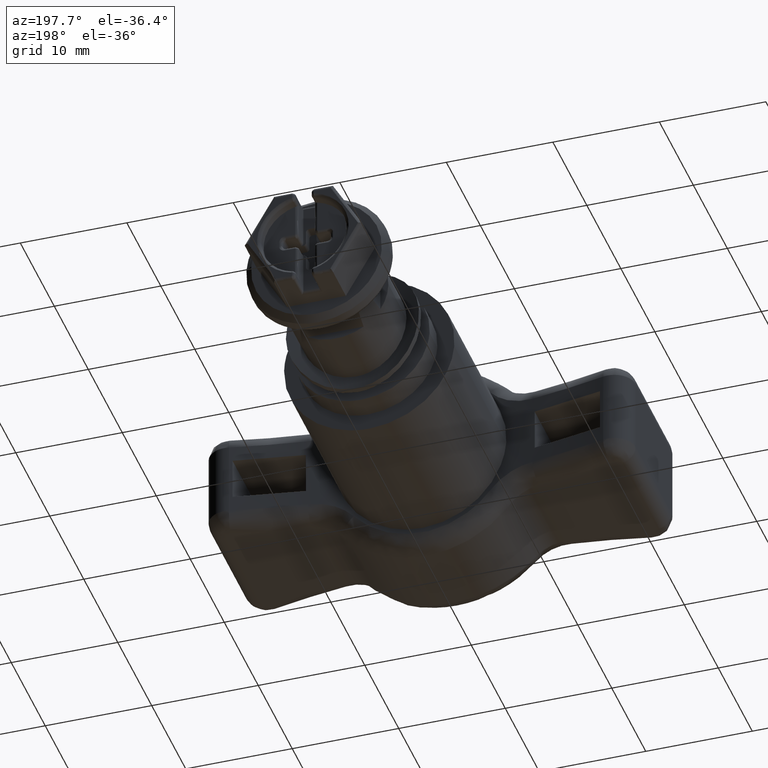
[diagram: clean part render]
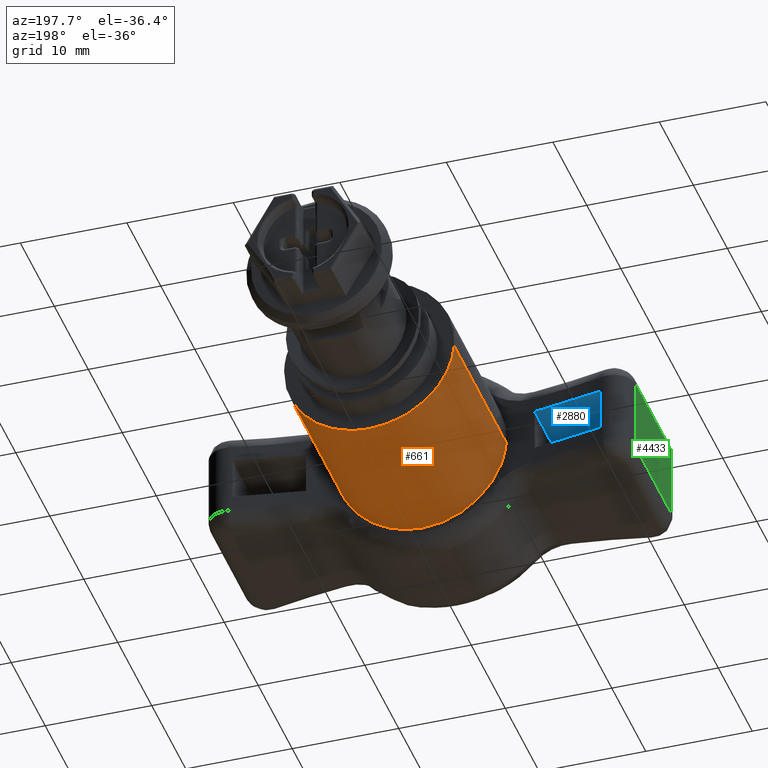
[diagram: same view with three faces highlighted in distinct colors, each labeled with its STEP entity id]
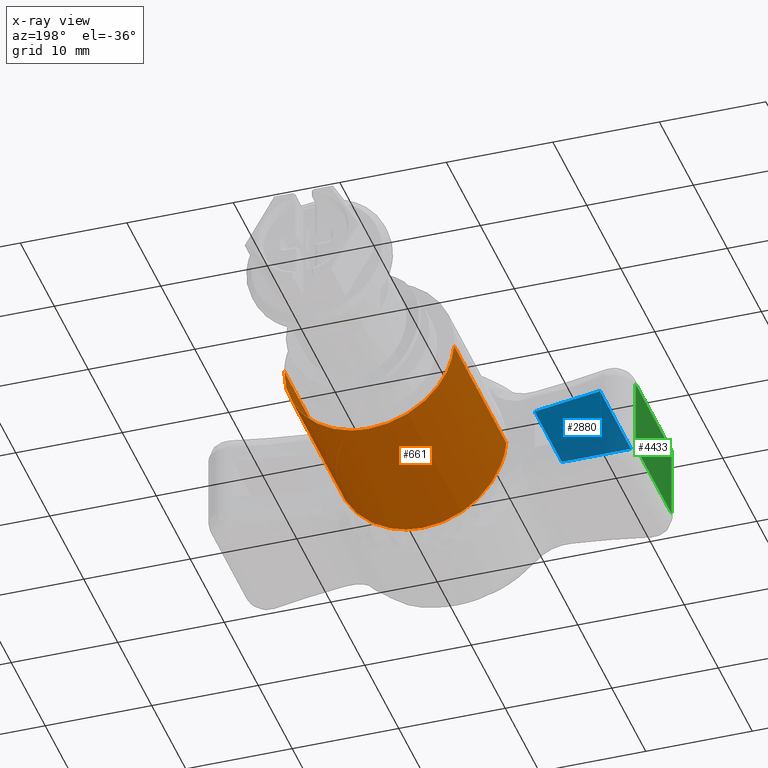
[diagram: x-ray of the same camera — body ghosted, the three highlighted faces saturated]
A machine part, auxiliary view with three faces highlighted in distinct colors.
The next image is the same camera in x-ray (body ghosted, the three faces saturated) — at least one of them is partly hidden behind the body in this view.
Their STEP definitions:

[orange] entity #661 — the highlighted face is a freeform B-spline surface patch.
#512=CARTESIAN_POINT('',(7.998182910859343,-16.093183124772978,0.170517459842974));
#513=CARTESIAN_POINT('',(8.159211660625195,-16.093183124772978,-7.382594084982651));
#514=CARTESIAN_POINT('',(0.627672795635606,-16.093183124772981,-7.975339048673273));
#515=CARTESIAN_POINT('',(-7.347666253037667,-16.093183124772981,-8.603011844308877));
#516=CARTESIAN_POINT('',(-7.975339048673273,-16.093183124772981,-0.627672795635606));
#517=CARTESIAN_POINT('',(7.998182910859343,0.402329578119323,0.170517459842974));
#518=CARTESIAN_POINT('',(8.159211660625195,0.402329578119323,-7.382594084982651));
#519=CARTESIAN_POINT('',(0.627672795635606,0.402329578119323,-7.975339048673273));
#520=CARTESIAN_POINT('',(-7.347666253037667,0.402329578119323,-8.603011844308877));
#521=CARTESIAN_POINT('',(-7.975339048673273,0.402329578119323,-0.627672795635606));
#529=(BOUNDED_SURFACE()B_SPLINE_SURFACE(2,1,((#512,#517),(#513,#518),(#514,#519),(#515,#520),(#516,#521)),.UNSPECIFIED.,.F.,.F.,.U.)B_SPLINE_SURFACE_WITH_KNOTS((3,2,3),(2,2),(0.0,12.724641240489460,25.979475865999309),(0.0,16.495512702892309),.UNSPECIFIED.)GEOMETRIC_REPRESENTATION_ITEM()RATIONAL_B_SPLINE_SURFACE(((0.977505800795127,0.977505800795127),(0.718822509939086,0.718822509939086),(1.0,1.0),(0.707106781186548,0.707106781186548),(1.0,1.0)))REPRESENTATION_ITEM('')SURFACE());
#530=CARTESIAN_POINT('',(7.998182910858612,-2.839428E-017,0.170517459877283));
#531=VERTEX_POINT('',#530);
#532=CARTESIAN_POINT('',(0.0,0.0,-8.000000379979600));
#533=VERTEX_POINT('',#532);
#534=CARTESIAN_POINT('',(7.998182910858612,-2.839428E-017,0.170517459877283));
#535=CARTESIAN_POINT('',(8.000000379979600,0.0,0.085268415749879));
#536=CARTESIAN_POINT('',(8.000000379979600,0.0,0.0));
#537=CARTESIAN_POINT('',(8.000000379979600,0.0,-8.000000379979600));
#538=CARTESIAN_POINT('',(0.0,0.0,-8.000000379979600));
#546=(BOUNDED_CURVE()B_SPLINE_CURVE(2,(#534,#535,#536,#537,#538),.UNSPECIFIED.,.F.,.U.)B_SPLINE_CURVE_WITH_KNOTS((3,2,3),(0.246248196889351,0.250000000000000,0.500000000000000),.UNSPECIFIED.)CURVE()GEOMETRIC_REPRESENTATION_ITEM()RATIONAL_B_SPLINE_CURVE((0.991340907212012,0.995604489242271,1.0,0.707106781186547,1.0))REPRESENTATION_ITEM(''));
#547=EDGE_CURVE('',#531,#533,#546,.T.);
#548=ORIENTED_EDGE('',*,*,#547,.F.);
#549=CARTESIAN_POINT('',(7.998189575504586,-15.299846145491509,0.170518252989713));
#550=VERTEX_POINT('',#549);
#551=CARTESIAN_POINT('',(7.998189575504586,-15.299846145491509,0.170518252989713));
#552=CARTESIAN_POINT('',(7.998182910858612,-2.839428E-017,0.170517459877283));
#553=QUASI_UNIFORM_CURVE('',1,(#551,#552),.UNSPECIFIED.,.F.,.U.);
#554=EDGE_CURVE('',#550,#531,#553,.T.);
#555=ORIENTED_EDGE('',*,*,#554,.F.);
#556=CARTESIAN_POINT('',(0.002939851220572,-15.700666409176170,-7.999999839809282));
#557=VERTEX_POINT('',#556);
#558=CARTESIAN_POINT('',(7.998189575504586,-15.299846145491509,0.170518252989713));
#559=CARTESIAN_POINT('',(7.999361779124968,-15.299727554607450,0.115168271400395));
#560=CARTESIAN_POINT('',(7.999962258468556,-15.299666631379781,0.059786582769005));
#561=CARTESIAN_POINT('',(8.000135389398656,-15.299649203480451,-0.256669031666603));
#562=CARTESIAN_POINT('',(7.987534302955652,-15.300918856037320,-0.518418086671199));
#563=CARTESIAN_POINT('',(7.948918610039151,-15.304781121968791,-0.912134817287734));
#564=CARTESIAN_POINT('',(7.932733655267993,-15.306396917732689,-1.043524846366049));
#565=CARTESIAN_POINT('',(7.894143888223549,-15.310232929859570,-1.303726245262153));
#566=CARTESIAN_POINT('',(7.871708108676165,-15.312456244713889,-1.432910369848698));
#567=CARTESIAN_POINT('',(7.744083212379546,-15.325033929791671,-2.074324657327033));
#568=CARTESIAN_POINT('',(7.592998519944930,-15.339771549675010,-2.573163739845848));
#569=CARTESIAN_POINT('',(7.342519093014885,-15.363017174533621,-3.178761723418712));
#570=CARTESIAN_POINT('',(7.289314257765386,-15.367907387093300,-3.298975749109803));
#571=CARTESIAN_POINT('',(7.176561544696968,-15.378143450977230,-3.537557203993290));
#572=CARTESIAN_POINT('',(7.117211095582082,-15.383470973422810,-3.655472801427078));
#573=CARTESIAN_POINT('',(6.931546452504620,-15.399909035225299,-4.002817816931408));
#574=CARTESIAN_POINT('',(6.797185204552394,-15.411515891286010,-4.226830356252360));
#575=CARTESIAN_POINT('',(6.363070375742504,-15.447740527954259,-4.876759991855820));
#576=CARTESIAN_POINT('',(6.032593298414259,-15.473769693843440,-5.280787030242660));
#577=CARTESIAN_POINT('',(5.286017741163784,-15.526715961379880,-6.028011434876336));
#578=CARTESIAN_POINT('',(4.882234633434437,-15.552729245029820,-6.358865586094344));
#579=CARTESIAN_POINT('',(4.232791438560047,-15.588904511928121,-6.793475985099809));
#580=CARTESIAN_POINT('',(4.008949809211765,-15.600491650913440,-6.928001922604571));
#581=CARTESIAN_POINT('',(3.661879752631648,-15.616898419187850,-7.113919769331390));
#582=CARTESIAN_POINT('',(3.544112581902928,-15.622212976667500,-7.173331248112847));
#583=CARTESIAN_POINT('',(3.305546993013137,-15.632435396187899,-7.286341745998351));
#584=CARTESIAN_POINT('',(3.185347477517295,-15.637318358402700,-7.339669217526497));
#585=CARTESIAN_POINT('',(2.579856628035139,-15.660527491288500,-7.590739066848222));
#586=CARTESIAN_POINT('',(2.081212907702857,-15.675235296331520,-7.742223783931449));
#587=CARTESIAN_POINT('',(1.440214819873516,-15.687804508937811,-7.870379777571555));
#588=CARTESIAN_POINT('',(1.311122608020739,-15.690027557710410,-7.892923332971799));
#589=CARTESIAN_POINT('',(1.116123366640953,-15.692906821986970,-7.922032119953430));
#590=CARTESIAN_POINT('',(1.050896692673512,-15.693790686528560,-7.930950254319211));
#591=CARTESIAN_POINT('',(0.919984490870974,-15.695403369064790,-7.947199792474359));
#592=CARTESIAN_POINT('',(0.854219091768488,-15.696132827903750,-7.954537623553475));
#593=CARTESIAN_POINT('',(0.525921290505257,-15.699368971603439,-7.987056304244334));
#594=CARTESIAN_POINT('',(0.264056165247729,-15.700656846643721,-7.999903886707103));
#595=CARTESIAN_POINT('',(0.002939851220572,-15.700666409176170,-7.999999839809282));
#596=B_SPLINE_CURVE_WITH_KNOTS('',3,(#558,#559,#560,#561,#562,#563,#564,#565,#566,#567,#568,#569,#570,#571,#572,#573,#574,#575,#576,#577,#578,#579,#580,#581,#582,#583,#584,#585,#586,#587,#588,#589,#590,#591,#592,#593,#594,#595),.UNSPECIFIED.,.F.,.U.,(4,2,2,2,2,2,2,2,2,2,2,2,2,2,2,2,2,2,4),(0.246683169838817,0.249999999999999,0.265624999999999,0.273437499999999,0.281249999999999,0.312499999999998,0.320312499999998,0.328124999999998,0.343749999999998,0.374999999999998,0.406249999999997,0.421874999999997,0.429687499999997,0.437499999999997,0.468749999999997,0.476562499999997,0.480468749999997,0.484374999999997,0.499999999999997),.UNSPECIFIED.);
#597=EDGE_CURVE('',#550,#557,#596,.T.);
#598=ORIENTED_EDGE('',*,*,#597,.T.);
#599=CARTESIAN_POINT('',(-7.975382287936505,-15.302137752788649,-0.627678039510764));
#600=VERTEX_POINT('',#599);
#601=CARTESIAN_POINT('',(0.002939851220572,-15.700666409176170,-7.999999839809282));
#602=CARTESIAN_POINT('',(-0.519291460865919,-15.700685675299450,-8.000191629880026));
#603=CARTESIAN_POINT('',(-1.038548440059233,-15.695591403295371,-7.949739154898611));
#604=CARTESIAN_POINT('',(-1.683817346708716,-15.683048553756350,-7.821895486386706));
#605=CARTESIAN_POINT('',(-1.813032951914057,-15.680221916224131,-7.792961923139670));
#606=CARTESIAN_POINT('',(-2.068721868534363,-15.674016832178600,-7.729018434223471));
#607=CARTESIAN_POINT('',(-2.195293369330933,-15.670638524865030,-7.694010739533669));
#608=CARTESIAN_POINT('',(-2.571261775830338,-15.659727946402890,-7.580050105458912));
#609=CARTESIAN_POINT('',(-3.062581071362703,-15.643112462943879,-7.404311597983808));
#610=CARTESIAN_POINT('',(-3.534283281223657,-15.622892904875741,-7.181728337673983));
#611=CARTESIAN_POINT('',(-3.880612930473646,-15.606574892924179,-6.996988184861610));
#612=CARTESIAN_POINT('',(-3.994812788805191,-15.600943418535721,-6.932435741651685));
#613=CARTESIAN_POINT('',(-4.220682931463810,-15.589330334868720,-6.797279900057411));
#614=CARTESIAN_POINT('',(-4.332532230606963,-15.583337635570590,-6.726537782526421));
#615=CARTESIAN_POINT('',(-4.879443903887531,-15.552923901541449,-6.361413906404891));
#616=CARTESIAN_POINT('',(-5.282286009533676,-15.526942363516071,-6.030686668035433));
#617=CARTESIAN_POINT('',(-5.835947209669057,-15.487732213460189,-5.478085077913468));
#618=CARTESIAN_POINT('',(-6.012006133763032,-15.474621102168291,-5.284397885906841));
#619=CARTESIAN_POINT('',(-6.262965123872072,-15.455178466048251,-4.979183549833924));
#620=CARTESIAN_POINT('',(-6.344386106871582,-15.448737348720259,-4.875004266766485));
#621=CARTESIAN_POINT('',(-6.501037834933513,-15.436119922367149,-4.664052635309197));
#622=CARTESIAN_POINT('',(-6.576507609474467,-15.429925292313561,-4.556998127232919));
#623=CARTESIAN_POINT('',(-6.939807442536304,-15.399624715175630,-4.013954716442582));
#624=CARTESIAN_POINT('',(-7.185894380659789,-15.377535967178430,-3.554875765541928));
#625=CARTESIAN_POINT('',(-7.437383023304014,-15.354214014037151,-2.949909206146691));
#626=CARTESIAN_POINT('',(-7.484849376166066,-15.349764260938841,-2.827346014649188));
#627=CARTESIAN_POINT('',(-7.551714698765231,-15.343442919807490,-2.641096910248803));
#628=CARTESIAN_POINT('',(-7.573289902973586,-15.341393769382000,-2.578576593098972));
#629=CARTESIAN_POINT('',(-7.614752728399441,-15.337440005551249,-2.453427920067087));
#630=CARTESIAN_POINT('',(-7.634671423907329,-15.335532467057901,-2.390716426037399));
#631=CARTESIAN_POINT('',(-7.730243649111445,-15.326346615466781,-2.076480169895048));
#632=CARTESIAN_POINT('',(-7.793863208059633,-15.320124044590351,-1.822924031508512));
#633=CARTESIAN_POINT('',(-7.906884711685405,-15.308987132321070,-1.257178292639849));
#634=CARTESIAN_POINT('',(-7.950517958472076,-15.304631910910491,-0.944014048735210));
#635=CARTESIAN_POINT('',(-7.975382287936505,-15.302137752788649,-0.627678039510764));
#636=B_SPLINE_CURVE_WITH_KNOTS('',3,(#601,#602,#603,#604,#605,#606,#607,#608,#609,#610,#611,#612,#613,#614,#615,#616,#617,#618,#619,#620,#621,#622,#623,#624,#625,#626,#627,#628,#629,#630,#631,#632,#633,#634,#635),.UNSPECIFIED.,.F.,.U.,(4,2,2,2,1,2,2,2,2,2,2,2,2,2,2,2,2,4),(0.499999999999997,0.531249999999997,0.539062499999997,0.546874999999997,0.562499999999997,0.578124999999997,0.585937499999997,0.593749999999997,0.624999999999997,0.640624999999997,0.648437499999997,0.656249999999997,0.687499999999997,0.695312499999997,0.699218749999997,0.703124999999997,0.718749999999997,0.737699302616936),.UNSPECIFIED.);
#637=EDGE_CURVE('',#557,#600,#636,.T.);
#638=ORIENTED_EDGE('',*,*,#637,.T.);
#639=CARTESIAN_POINT('',(-7.975339176322901,1.393671E-011,-0.627671173689076));
#640=VERTEX_POINT('',#639);
#641=CARTESIAN_POINT('',(-7.975382287936505,-15.302137752788649,-0.627678039510764));
#642=CARTESIAN_POINT('',(-7.975339176322901,1.393671E-011,-0.627671173689076));
#643=QUASI_UNIFORM_CURVE('',1,(#641,#642),.UNSPECIFIED.,.F.,.U.);
#644=EDGE_CURVE('',#600,#640,#643,.T.);
#645=ORIENTED_EDGE('',*,*,#644,.T.);
#646=CARTESIAN_POINT('',(0.0,0.0,-8.000000379979600));
#647=CARTESIAN_POINT('',(-7.395125793113939,0.0,-8.000000379979600));
#648=CARTESIAN_POINT('',(-7.975339176322901,1.393671E-011,-0.627671173689076));
#656=(BOUNDED_CURVE()B_SPLINE_CURVE(2,(#646,#647,#648),.UNSPECIFIED.,.F.,.U.)B_SPLINE_CURVE_WITH_KNOTS((3,3),(0.500000000000000,0.736331335495406),.UNSPECIFIED.)CURVE()GEOMETRIC_REPRESENTATION_ITEM()RATIONAL_B_SPLINE_CURVE((1.0,0.723120617761075,0.969723428927495))REPRESENTATION_ITEM(''));
#657=EDGE_CURVE('',#533,#640,#656,.T.);
#658=ORIENTED_EDGE('',*,*,#657,.F.);
#659=EDGE_LOOP('',(#548,#555,#598,#638,#645,#658));
#660=FACE_OUTER_BOUND('',#659,.T.);
#661=ADVANCED_FACE('',(#660),#529,.T.);

[blue] entity #2880 — the highlighted face is a freeform B-spline surface patch.
#2795=CARTESIAN_POINT('',(-10.750000510597600,-14.975110608428700,2.000000094994890));
#2796=VERTEX_POINT('',#2795);
#2802=CARTESIAN_POINT('',(-17.250000819330900,-13.818766069071939,2.000000094994890));
#2803=VERTEX_POINT('',#2802);
#2804=CARTESIAN_POINT('',(-10.750000510597600,-14.975110608428700,2.000000094994890));
#2805=CARTESIAN_POINT('',(-14.023878033360909,-14.531156901356020,2.000000094994791));
#2806=CARTESIAN_POINT('',(-17.250000819330900,-13.818766069071939,2.000000094994890));
#2814=(BOUNDED_CURVE()B_SPLINE_CURVE(2,(#2804,#2805,#2806),.UNSPECIFIED.,.F.,.U.)CURVE()GEOMETRIC_REPRESENTATION_ITEM()QUASI_UNIFORM_CURVE()RATIONAL_B_SPLINE_CURVE((1.0,0.999148326142877,1.0))REPRESENTATION_ITEM(''));
#2815=EDGE_CURVE('',#2796,#2803,#2814,.T.);
#2843=CARTESIAN_POINT('',(-10.750000510597600,-22.949999999999999,2.000000094994890));
#2844=VERTEX_POINT('',#2843);
#2850=CARTESIAN_POINT('',(-10.750000510597600,-22.949999999999999,2.000000094994890));
#2851=CARTESIAN_POINT('',(-10.750000510597600,-14.975110608428700,2.000000094994890));
#2852=QUASI_UNIFORM_CURVE('',1,(#2850,#2851),.UNSPECIFIED.,.F.,.U.);
#2853=EDGE_CURVE('',#2844,#2796,#2852,.T.);
#2859=CARTESIAN_POINT('',(-17.574674944688368,-23.406105974326671,2.000000094994805));
#2860=CARTESIAN_POINT('',(-10.425325862209350,-23.406105974326671,2.000000094994805));
#2861=CARTESIAN_POINT('',(-17.574674944688368,-13.362660666222430,2.000000094994805));
#2862=CARTESIAN_POINT('',(-10.425325862209350,-13.362660666222430,2.000000094994805));
#2863=B_SPLINE_SURFACE_WITH_KNOTS('',1,1,((#2859,#2861),(#2860,#2862)),.UNSPECIFIED.,.F.,.F.,.U.,(2,2),(2,2),(0.0,7.149349082479018),(0.0,10.043445308104239),.UNSPECIFIED.);
#2864=ORIENTED_EDGE('',*,*,#2853,.F.);
#2865=CARTESIAN_POINT('',(-17.250000819330900,-22.949999999999999,2.000000094994890));
#2866=VERTEX_POINT('',#2865);
#2867=CARTESIAN_POINT('',(-17.250000819330900,-22.949999999999999,2.000000094994890));
#2868=CARTESIAN_POINT('',(-10.750000510597600,-22.949999999999999,2.000000094994890));
#2869=QUASI_UNIFORM_CURVE('',1,(#2867,#2868),.UNSPECIFIED.,.F.,.U.);
#2870=EDGE_CURVE('',#2866,#2844,#2869,.T.);
#2871=ORIENTED_EDGE('',*,*,#2870,.F.);
#2872=CARTESIAN_POINT('',(-17.250000819330900,-22.949999999999999,2.000000094994890));
#2873=CARTESIAN_POINT('',(-17.250000819330900,-13.818766069071939,2.000000094994890));
#2874=QUASI_UNIFORM_CURVE('',1,(#2872,#2873),.UNSPECIFIED.,.F.,.U.);
#2875=EDGE_CURVE('',#2866,#2803,#2874,.T.);
#2876=ORIENTED_EDGE('',*,*,#2875,.T.);
#2877=ORIENTED_EDGE('',*,*,#2815,.F.);
#2878=EDGE_LOOP('',(#2864,#2871,#2876,#2877));
#2879=FACE_OUTER_BOUND('',#2878,.T.);
#2880=ADVANCED_FACE('',(#2879),#2863,.F.);

[green] entity #4433 — the highlighted face is a freeform B-spline surface patch.
#3206=CARTESIAN_POINT('',(-20.000000949948952,-15.700666344449401,3.500000237480455));
#3207=VERTEX_POINT('',#3206);
#3208=CARTESIAN_POINT('',(-20.000000949948952,-15.700666344449401,-3.500000237480315));
#3209=VERTEX_POINT('',#3208);
#3210=CARTESIAN_POINT('',(-20.000000949948952,-15.700666344449401,3.500000237480455));
#3211=CARTESIAN_POINT('',(-20.000000949948952,-15.700666344449401,-3.500000237480315));
#3212=QUASI_UNIFORM_CURVE('',1,(#3210,#3211),.UNSPECIFIED.,.F.,.U.);
#3213=EDGE_CURVE('',#3207,#3209,#3212,.T.);
#4406=CARTESIAN_POINT('',(-20.000000949948952,-26.724442572513031,-3.849650247637249));
#4407=CARTESIAN_POINT('',(-20.000000949948952,-26.724442572513031,3.849650435392083));
#4408=CARTESIAN_POINT('',(-20.000000949948952,-15.176224325379200,-3.849650247637249));
#4409=CARTESIAN_POINT('',(-20.000000949948952,-15.176224325379200,3.849650435392083));
#4410=B_SPLINE_SURFACE_WITH_KNOTS('',1,1,((#4406,#4408),(#4407,#4409)),.UNSPECIFIED.,.F.,.F.,.U.,(2,2),(2,2),(0.0,7.699300683029332),(0.0,11.548218247133830),.UNSPECIFIED.);
#4411=CARTESIAN_POINT('',(-20.000000949948952,-26.200000928928301,-3.500000237480295));
#4412=VERTEX_POINT('',#4411);
#4413=CARTESIAN_POINT('',(-20.000000949948952,-26.200000928928301,3.500000237480505));
#4414=VERTEX_POINT('',#4413);
#4415=CARTESIAN_POINT('',(-20.000000949948952,-26.200000928928301,-3.500000237480295));
#4416=CARTESIAN_POINT('',(-20.000000949948952,-26.200000928928301,3.500000237480505));
#4417=QUASI_UNIFORM_CURVE('',1,(#4415,#4416),.UNSPECIFIED.,.F.,.U.);
#4418=EDGE_CURVE('',#4412,#4414,#4417,.T.);
#4419=ORIENTED_EDGE('',*,*,#4418,.T.);
#4420=CARTESIAN_POINT('',(-20.000000949948952,-26.200000928928301,3.500000237480505));
#4421=CARTESIAN_POINT('',(-20.000000949948952,-15.700666344449401,3.500000237480455));
#4422=QUASI_UNIFORM_CURVE('',1,(#4420,#4421),.UNSPECIFIED.,.F.,.U.);
#4423=EDGE_CURVE('',#4414,#3207,#4422,.T.);
#4424=ORIENTED_EDGE('',*,*,#4423,.T.);
#4425=ORIENTED_EDGE('',*,*,#3213,.T.);
#4426=CARTESIAN_POINT('',(-20.000000949948952,-15.700666344449401,-3.500000237480315));
#4427=CARTESIAN_POINT('',(-20.000000949948952,-26.200000928928301,-3.500000237480295));
#4428=QUASI_UNIFORM_CURVE('',1,(#4426,#4427),.UNSPECIFIED.,.F.,.U.);
#4429=EDGE_CURVE('',#3209,#4412,#4428,.T.);
#4430=ORIENTED_EDGE('',*,*,#4429,.T.);
#4431=EDGE_LOOP('',(#4419,#4424,#4425,#4430));
#4432=FACE_OUTER_BOUND('',#4431,.T.);
#4433=ADVANCED_FACE('',(#4432),#4410,.T.);